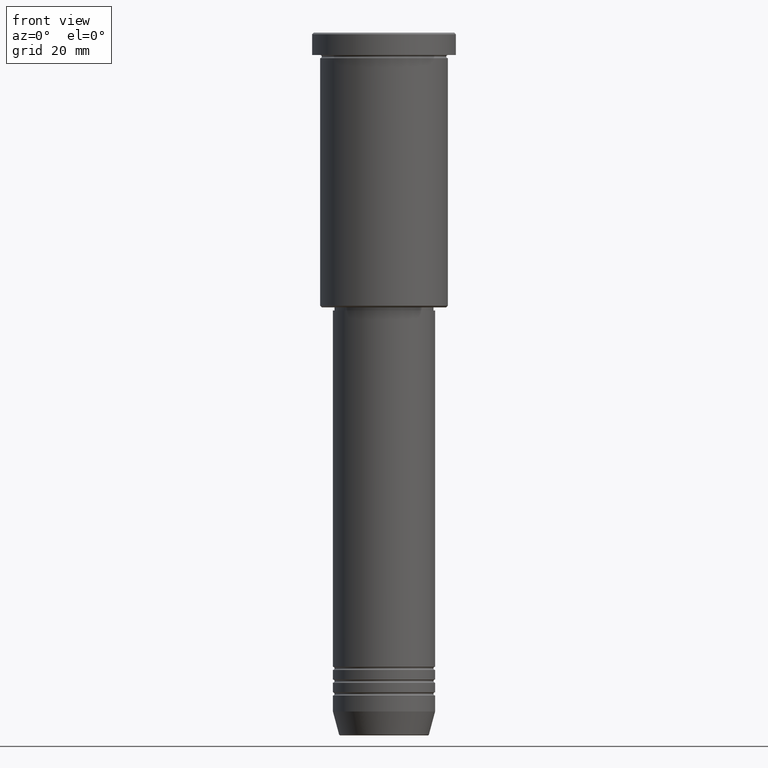
[diagram: clean part render]
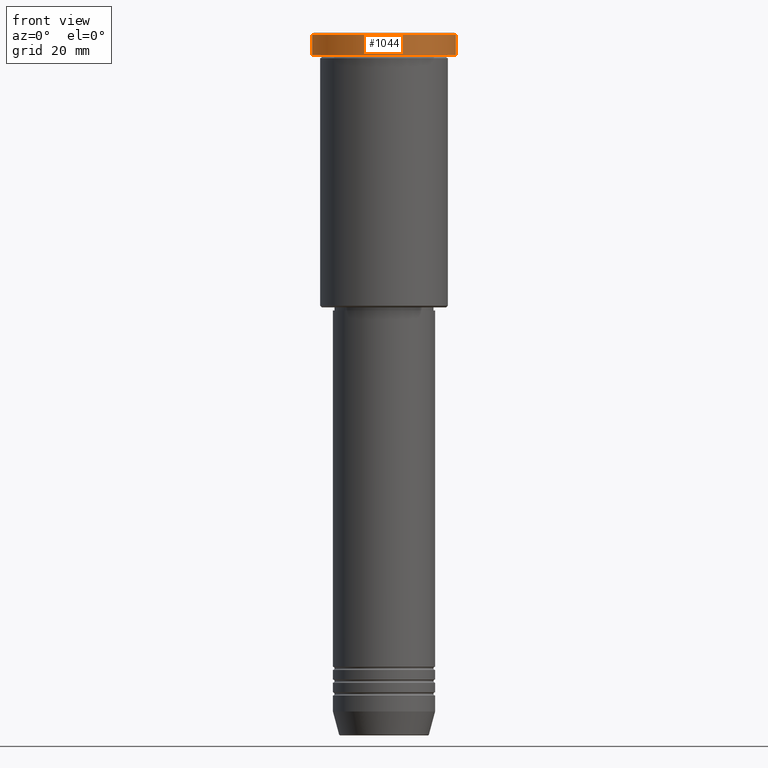
[diagram: same view with one face highlighted and labeled with its STEP entity id]
A machine part, front view. The second image highlights one B-rep face of the part: STEP entity #1044.
In plain terms, the highlighted cylindrical surface (partial cylindrical patch) has radius 22.5 mm, axis along (-0, -0, 1).
Its self-contained STEP definition (entity closure, byte-faithful):
#13 = AXIS2_PLACEMENT_3D ( 'NONE', #483, #1118, #1134 ) ;
#36 = EDGE_CURVE ( 'NONE', #716, #448, #350, .T. ) ;
#103 = DIRECTION ( 'NONE',  ( -0.000000000000000000, -0.000000000000000000, 1.000000000000000000 ) ) ;
#170 = CARTESIAN_POINT ( 'NONE',  ( -22.50000000000000000, 2.755455298081544778E-15, 0.000000000000000000 ) ) ;
#194 = CYLINDRICAL_SURFACE ( 'NONE', #1099, 22.50000000000000000 ) ;
#206 = VECTOR ( 'NONE', #598, 1000.000000000000000 ) ;
#216 = CARTESIAN_POINT ( 'NONE',  ( 22.50000000000000000, 0.000000000000000000, -6.999999999999995559 ) ) ;
#238 = EDGE_LOOP ( 'NONE', ( #801, #392, #1141, #789 ) ) ;
#300 = AXIS2_PLACEMENT_3D ( 'NONE', #743, #559, #916 ) ;
#350 = LINE ( 'NONE', #170, #410 ) ;
#392 = ORIENTED_EDGE ( 'NONE', *, *, #548, .T. ) ;
#410 = VECTOR ( 'NONE', #714, 1000.000000000000000 ) ;
#448 = VERTEX_POINT ( 'NONE', #1072 ) ;
#467 = DIRECTION ( 'NONE',  ( 1.000000000000000000, 0.000000000000000000, 0.000000000000000000 ) ) ;
#483 = CARTESIAN_POINT ( 'NONE',  ( 0.000000000000000000, 0.000000000000000000, -0.5000000000000213163 ) ) ;
#548 = EDGE_CURVE ( 'NONE', #716, #669, #722, .T. ) ;
#559 = DIRECTION ( 'NONE',  ( -0.000000000000000000, -0.000000000000000000, 1.000000000000000000 ) ) ;
#598 = DIRECTION ( 'NONE',  ( -0.000000000000000000, -0.000000000000000000, 1.000000000000000000 ) ) ;
#669 = VERTEX_POINT ( 'NONE', #216 ) ;
#689 = LINE ( 'NONE', #1051, #206 ) ;
#714 = DIRECTION ( 'NONE',  ( -0.000000000000000000, -0.000000000000000000, 1.000000000000000000 ) ) ;
#716 = VERTEX_POINT ( 'NONE', #1028 ) ;
#717 = CARTESIAN_POINT ( 'NONE',  ( 22.50000000000000000, 0.000000000000000000, -0.5000000000000213163 ) ) ;
#722 = CIRCLE ( 'NONE', #300, 22.50000000000000000 ) ;
#732 = EDGE_CURVE ( 'NONE', #918, #448, #742, .T. ) ;
#740 = FACE_OUTER_BOUND ( 'NONE', #238, .T. ) ;
#742 = CIRCLE ( 'NONE', #13, 22.50000000000000000 ) ;
#743 = CARTESIAN_POINT ( 'NONE',  ( 0.000000000000000000, 0.000000000000000000, -6.999999999999995559 ) ) ;
#789 = ORIENTED_EDGE ( 'NONE', *, *, #732, .T. ) ;
#801 = ORIENTED_EDGE ( 'NONE', *, *, #36, .F. ) ;
#806 = EDGE_CURVE ( 'NONE', #669, #918, #689, .T. ) ;
#916 = DIRECTION ( 'NONE',  ( 1.000000000000000000, 0.000000000000000000, 0.000000000000000000 ) ) ;
#918 = VERTEX_POINT ( 'NONE', #717 ) ;
#924 = CARTESIAN_POINT ( 'NONE',  ( 0.000000000000000000, 0.000000000000000000, 0.000000000000000000 ) ) ;
#1028 = CARTESIAN_POINT ( 'NONE',  ( -22.50000000000000000, 2.755455298081544778E-15, -6.999999999999995559 ) ) ;
#1044 = ADVANCED_FACE ( 'NONE', ( #740 ), #194, .T. ) ;
#1051 = CARTESIAN_POINT ( 'NONE',  ( 22.50000000000000000, 0.000000000000000000, 0.000000000000000000 ) ) ;
#1072 = CARTESIAN_POINT ( 'NONE',  ( -22.50000000000000000, 2.755455298081544778E-15, -0.5000000000000213163 ) ) ;
#1099 = AXIS2_PLACEMENT_3D ( 'NONE', #924, #103, #467 ) ;
#1118 = DIRECTION ( 'NONE',  ( 0.000000000000000000, 0.000000000000000000, -1.000000000000000000 ) ) ;
#1134 = DIRECTION ( 'NONE',  ( 1.000000000000000000, 0.000000000000000000, 0.000000000000000000 ) ) ;
#1141 = ORIENTED_EDGE ( 'NONE', *, *, #806, .T. ) ;